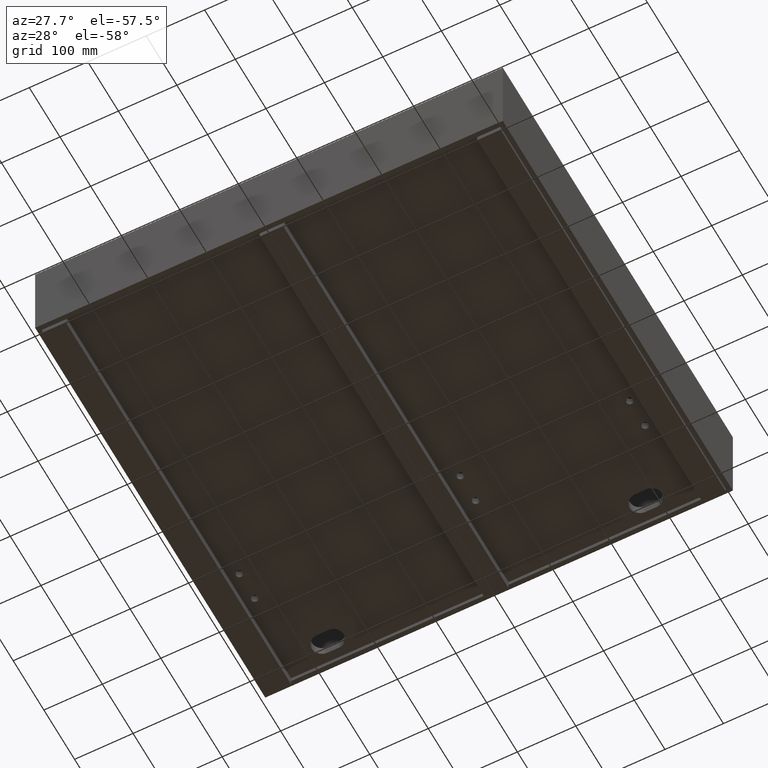
[diagram: clean part render]
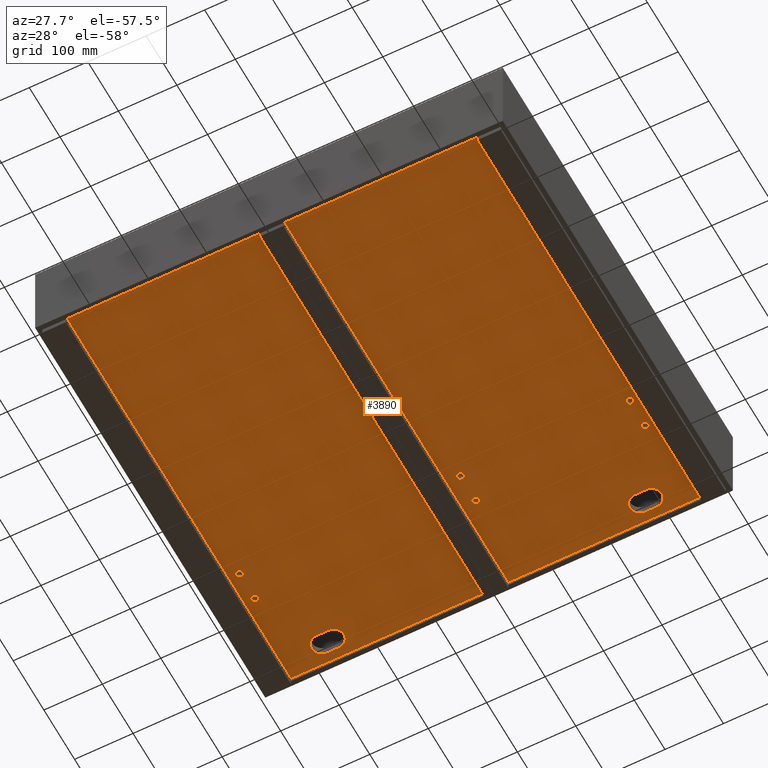
[diagram: same view with one face highlighted and labeled with its STEP entity id]
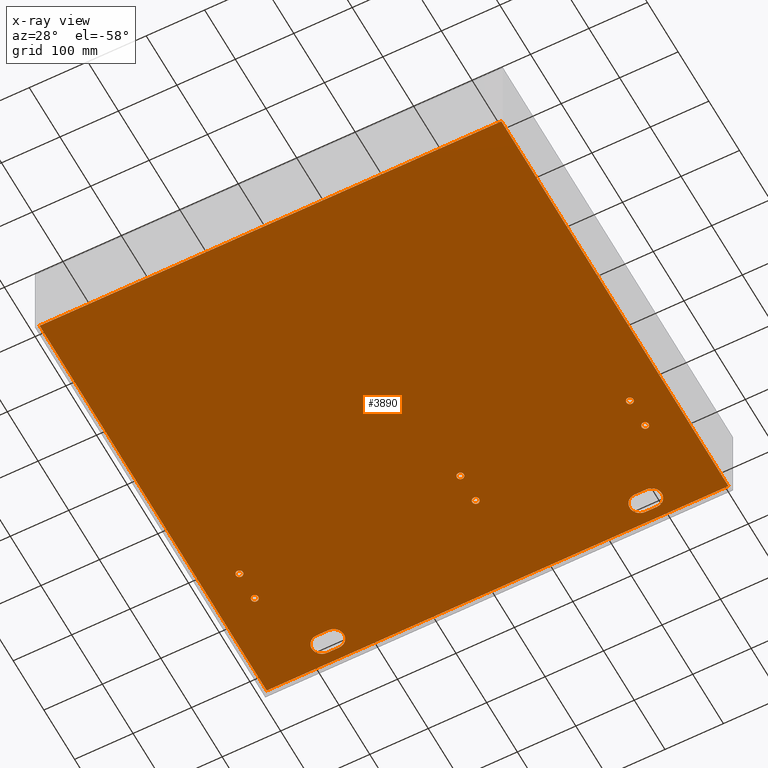
[diagram: x-ray of the same camera — body ghosted, the highlighted face saturated]
A machine part, auxiliary view. The second image highlights one B-rep face of the part: STEP entity #3890.
The next image is the same camera in x-ray: the body ghosted, the highlighted face saturated — about 0% of this face is hidden behind the body in this view.
In plain terms, the highlighted planar face has unit normal (0, -0, 1).
Its self-contained STEP definition (entity closure, byte-faithful):
#23 = EDGE_LOOP ( 'NONE', ( #7835, #491 ) ) ;
#102 = EDGE_CURVE ( 'NONE', #3132, #2811, #4945, .T. ) ;
#115 = PLANE ( 'NONE',  #1767 ) ;
#463 = DIRECTION ( 'NONE',  ( -1.000000000000000000, 0.0000000000000000000, 0.0000000000000000000 ) ) ;
#475 = CARTESIAN_POINT ( 'NONE',  ( 681.9999999999998863, 709.9999000000001388, -141.0000000000003126 ) ) ;
#481 = DIRECTION ( 'NONE',  ( -1.000000000000000000, 0.0000000000000000000, 0.0000000000000000000 ) ) ;
#491 = ORIENTED_EDGE ( 'NONE', *, *, #10372, .F. ) ;
#498 = VECTOR ( 'NONE', #10627, 1000.000000000000000 ) ;
#501 = DIRECTION ( 'NONE',  ( 1.000000000000000000, 0.0000000000000000000, 0.0000000000000000000 ) ) ;
#513 = CARTESIAN_POINT ( 'NONE',  ( 118.0000000000002132, 692.4999000000001388, -141.0000000000002558 ) ) ;
#517 = EDGE_CURVE ( 'NONE', #3669, #3132, #4400, .T. ) ;
#590 = CARTESIAN_POINT ( 'NONE',  ( 727.9999999999998863, 589.9999000000000251, -141.0000000000002274 ) ) ;
#648 = CARTESIAN_POINT ( 'NONE',  ( 66.00000000000005684, 539.9999000000000251, -141.0000000000002274 ) ) ;
#721 = DIRECTION ( 'NONE',  ( 1.000000000000000000, 0.0000000000000000000, 0.0000000000000000000 ) ) ;
#731 = EDGE_CURVE ( 'NONE', #1157, #2423, #4957, .T. ) ;
#782 = DIRECTION ( 'NONE',  ( -1.000000000000000000, 0.0000000000000000000, 0.0000000000000000000 ) ) ;
#883 = DIRECTION ( 'NONE',  ( -1.000000000000000000, -0.0000000000000000000, 1.054009200593503238E-16 ) ) ;
#893 = VECTOR ( 'NONE', #883, 1000.000000000000000 ) ;
#953 = FACE_BOUND ( 'NONE', #1112, .T. ) ;
#1010 = EDGE_CURVE ( 'NONE', #3452, #4404, #7487, .T. ) ;
#1032 = DIRECTION ( 'NONE',  ( -1.000000000000000000, 0.0000000000000000000, 0.0000000000000000000 ) ) ;
#1062 = EDGE_LOOP ( 'NONE', ( #10135, #4587 ) ) ;
#1112 = EDGE_LOOP ( 'NONE', ( #2564, #1601 ) ) ;
#1145 = AXIS2_PLACEMENT_3D ( 'NONE', #9262, #1542, #4972 ) ;
#1157 = VERTEX_POINT ( 'NONE', #3477 ) ;
#1316 = EDGE_LOOP ( 'NONE', ( #9093, #5187 ) ) ;
#1412 = DIRECTION ( 'NONE',  ( -1.054009200593503238E-16, 0.0000000000000000000, -1.000000000000000000 ) ) ;
#1419 = DIRECTION ( 'NONE',  ( 1.000000000000000000, -0.0000000000000000000, -0.0000000000000000000 ) ) ;
#1542 = DIRECTION ( 'NONE',  ( 0.0000000000000000000, 0.0000000000000000000, -1.000000000000000000 ) ) ;
#1546 = ORIENTED_EDGE ( 'NONE', *, *, #102, .F. ) ;
#1601 = ORIENTED_EDGE ( 'NONE', *, *, #5443, .F. ) ;
#1755 = EDGE_CURVE ( 'NONE', #3044, #3244, #3739, .T. ) ;
#1760 = CARTESIAN_POINT ( 'NONE',  ( 740.0000000000001137, 589.9999000000000251, -141.0000000000002274 ) ) ;
#1767 = AXIS2_PLACEMENT_3D ( 'NONE', #3548, #6984, #10432 ) ;
#1796 = FACE_BOUND ( 'NONE', #6257, .T. ) ;
#1836 = CARTESIAN_POINT ( 'NONE',  ( 100.5000000000002558, 709.9999000000000251, -141.0000000000002558 ) ) ;
#1839 = CARTESIAN_POINT ( 'NONE',  ( 681.9999999999998863, 692.4999000000001388, -141.0000000000003126 ) ) ;
#1924 = CARTESIAN_POINT ( 'NONE',  ( 72.00000000000005684, 589.9999000000000251, -141.0000000000002274 ) ) ;
#1957 = CIRCLE ( 'NONE', #8278, 17.49999999999996092 ) ;
#2115 = CARTESIAN_POINT ( 'NONE',  ( 727.9999999999998863, 539.9999000000000251, -141.0000000000002274 ) ) ;
#2171 = VERTEX_POINT ( 'NONE', #7994 ) ;
#2423 = VERTEX_POINT ( 'NONE', #5044 ) ;
#2426 = EDGE_LOOP ( 'NONE', ( #2829, #3995 ) ) ;
#2463 = DIRECTION ( 'NONE',  ( 1.000000000000000000, 0.0000000000000000000, 0.0000000000000000000 ) ) ;
#2473 = ORIENTED_EDGE ( 'NONE', *, *, #10181, .T. ) ;
#2564 = ORIENTED_EDGE ( 'NONE', *, *, #3559, .F. ) ;
#2654 = FACE_BOUND ( 'NONE', #9300, .T. ) ;
#2678 = CARTESIAN_POINT ( 'NONE',  ( 681.9999999999998863, 692.4999000000001388, -141.0000000000003126 ) ) ;
#2698 = DIRECTION ( 'NONE',  ( -1.054009200593503238E-16, 0.0000000000000000000, -1.000000000000000000 ) ) ;
#2710 = DIRECTION ( 'NONE',  ( -1.000000000000000000, -0.0000000000000000000, -0.0000000000000000000 ) ) ;
#2811 = VERTEX_POINT ( 'NONE', #6731 ) ;
#2829 = ORIENTED_EDGE ( 'NONE', *, *, #10102, .F. ) ;
#2885 = DIRECTION ( 'NONE',  ( 0.0000000000000000000, 0.0000000000000000000, -1.000000000000000000 ) ) ;
#2895 = VERTEX_POINT ( 'NONE', #1760 ) ;
#3044 = VERTEX_POINT ( 'NONE', #10615 ) ;
#3055 = CIRCLE ( 'NONE', #9352, 17.49999999999996092 ) ;
#3097 = CIRCLE ( 'NONE', #9389, 6.000000000000005329 ) ;
#3132 = VERTEX_POINT ( 'NONE', #1836 ) ;
#3147 = CARTESIAN_POINT ( 'NONE',  ( 661.9999999999998863, 727.4999000000001388, -141.0000000000003126 ) ) ;
#3162 = CARTESIAN_POINT ( 'NONE',  ( 734.0000000000000000, 589.9999000000000251, -141.0000000000002274 ) ) ;
#3196 = DIRECTION ( 'NONE',  ( -0.0000000000000000000, -1.000000000000000000, -0.0000000000000000000 ) ) ;
#3244 = VERTEX_POINT ( 'NONE', #5495 ) ;
#3262 = AXIS2_PLACEMENT_3D ( 'NONE', #10418, #2698, #6127 ) ;
#3268 = CIRCLE ( 'NONE', #9575, 17.49999999999996092 ) ;
#3340 = VECTOR ( 'NONE', #3196, 1000.000000000000000 ) ;
#3431 = DIRECTION ( 'NONE',  ( -1.000000000000000000, 0.0000000000000000000, 0.0000000000000000000 ) ) ;
#3452 = VERTEX_POINT ( 'NONE', #11135 ) ;
#3477 = CARTESIAN_POINT ( 'NONE',  ( 661.9999999999998863, 692.4999000000001388, -141.0000000000003126 ) ) ;
#3548 = CARTESIAN_POINT ( 'NONE',  ( 5.000000000000004441, 1536.161908704543976, -141.0000000000002274 ) ) ;
#3559 = EDGE_CURVE ( 'NONE', #4522, #8385, #8429, .T. ) ;
#3566 = AXIS2_PLACEMENT_3D ( 'NONE', #10610, #2885, #6314 ) ;
#3631 = EDGE_CURVE ( 'NONE', #9721, #7408, #9323, .T. ) ;
#3656 = EDGE_CURVE ( 'NONE', #7408, #9721, #10777, .T. ) ;
#3669 = VERTEX_POINT ( 'NONE', #513 ) ;
#3739 = LINE ( 'NONE', #7180, #498 ) ;
#3871 = ORIENTED_EDGE ( 'NONE', *, *, #731, .F. ) ;
#3890 = ADVANCED_FACE ( 'NONE', ( #2654, #6082, #9524, #1796, #5234, #8675, #953, #4389, #7836 ), #115, .F. ) ;
#3893 = CARTESIAN_POINT ( 'NONE',  ( 118.0000000000002132, 709.9999000000000251, -141.0000000000002558 ) ) ;
#3894 = CARTESIAN_POINT ( 'NONE',  ( 734.0000000000000000, 539.9999000000000251, -141.0000000000002274 ) ) ;
#3907 = DIRECTION ( 'NONE',  ( -1.423362852083534639E-16, 0.0000000000000000000, -1.000000000000000000 ) ) ;
#3956 = CARTESIAN_POINT ( 'NONE',  ( 118.0000000000002132, 709.9999000000000251, -141.0000000000002558 ) ) ;
#3978 = CARTESIAN_POINT ( 'NONE',  ( 60.00000000000004974, 539.9999000000000251, -141.0000000000002274 ) ) ;
#3994 = LINE ( 'NONE', #7437, #9632 ) ;
#3995 = ORIENTED_EDGE ( 'NONE', *, *, #8451, .F. ) ;
#4009 = ORIENTED_EDGE ( 'NONE', *, *, #4632, .F. ) ;
#4041 = VECTOR ( 'NONE', #2710, 1000.000000000000000 ) ;
#4083 = DIRECTION ( 'NONE',  ( 0.0000000000000000000, 0.0000000000000000000, -1.000000000000000000 ) ) ;
#4207 = CIRCLE ( 'NONE', #10516, 6.000000000000116351 ) ;
#4215 = EDGE_CURVE ( 'NONE', #9264, #10052, #4832, .T. ) ;
#4243 = LINE ( 'NONE', #7689, #8359 ) ;
#4343 = AXIS2_PLACEMENT_3D ( 'NONE', #5059, #8507, #782 ) ;
#4389 = FACE_BOUND ( 'NONE', #2426, .T. ) ;
#4400 = CIRCLE ( 'NONE', #9257, 17.49999999999996092 ) ;
#4404 = VERTEX_POINT ( 'NONE', #7131 ) ;
#4461 = AXIS2_PLACEMENT_3D ( 'NONE', #4738, #8186, #463 ) ;
#4522 = VERTEX_POINT ( 'NONE', #3978 ) ;
#4587 = ORIENTED_EDGE ( 'NONE', *, *, #6702, .F. ) ;
#4632 = EDGE_CURVE ( 'NONE', #5595, #10264, #1957, .T. ) ;
#4738 = CARTESIAN_POINT ( 'NONE',  ( 734.0000000000000000, 539.9999000000000251, -141.0000000000002274 ) ) ;
#4752 = AXIS2_PLACEMENT_3D ( 'NONE', #3162, #6598, #10041 ) ;
#4754 = ORIENTED_EDGE ( 'NONE', *, *, #4941, .F. ) ;
#4759 = CARTESIAN_POINT ( 'NONE',  ( 734.0000000000000000, 589.9999000000000251, -141.0000000000002274 ) ) ;
#4784 = CARTESIAN_POINT ( 'NONE',  ( 444.0000000000000568, 539.9999000000000251, -141.0000000000002842 ) ) ;
#4785 = ORIENTED_EDGE ( 'NONE', *, *, #10572, .F. ) ;
#4832 = CIRCLE ( 'NONE', #11147, 6.000000000000005329 ) ;
#4846 = DIRECTION ( 'NONE',  ( 1.000000000000000000, 0.0000000000000000000, 0.0000000000000000000 ) ) ;
#4919 = ORIENTED_EDGE ( 'NONE', *, *, #6048, .F. ) ;
#4941 = EDGE_CURVE ( 'NONE', #5623, #5589, #3055, .T. ) ;
#4945 = CIRCLE ( 'NONE', #9816, 17.49999999999996092 ) ;
#4957 = CIRCLE ( 'NONE', #9832, 17.49999999999996092 ) ;
#4972 = DIRECTION ( 'NONE',  ( -1.000000000000000000, 0.0000000000000000000, 0.0000000000000000000 ) ) ;
#4995 = CARTESIAN_POINT ( 'NONE',  ( 444.0000000000000568, 589.9999000000000251, -141.0000000000002842 ) ) ;
#5044 = CARTESIAN_POINT ( 'NONE',  ( 644.5000000000000000, 709.9999000000001388, -141.0000000000003126 ) ) ;
#5059 = CARTESIAN_POINT ( 'NONE',  ( 66.00000000000005684, 589.9999000000000251, -141.0000000000002274 ) ) ;
#5127 = EDGE_CURVE ( 'NONE', #3244, #4404, #5156, .T. ) ;
#5156 = LINE ( 'NONE', #8604, #893 ) ;
#5187 = ORIENTED_EDGE ( 'NONE', *, *, #3631, .F. ) ;
#5234 = FACE_BOUND ( 'NONE', #1316, .T. ) ;
#5279 = DIRECTION ( 'NONE',  ( -1.000000000000000000, 0.0000000000000000000, 0.0000000000000000000 ) ) ;
#5296 = AXIS2_PLACEMENT_3D ( 'NONE', #4784, #8231, #501 ) ;
#5314 = CARTESIAN_POINT ( 'NONE',  ( 661.9999999999998863, 709.9999000000001388, -141.0000000000003126 ) ) ;
#5391 = AXIS2_PLACEMENT_3D ( 'NONE', #648, #4083, #7523 ) ;
#5443 = EDGE_CURVE ( 'NONE', #8385, #4522, #10265, .T. ) ;
#5495 = CARTESIAN_POINT ( 'NONE',  ( 795.0000000000000000, 5.000000000000004441, -141.0000000000003126 ) ) ;
#5502 = ORIENTED_EDGE ( 'NONE', *, *, #6039, .F. ) ;
#5562 = ORIENTED_EDGE ( 'NONE', *, *, #5127, .T. ) ;
#5589 = VERTEX_POINT ( 'NONE', #2678 ) ;
#5595 = VERTEX_POINT ( 'NONE', #9551 ) ;
#5623 = VERTEX_POINT ( 'NONE', #9610 ) ;
#5659 = VERTEX_POINT ( 'NONE', #1924 ) ;
#5697 = LINE ( 'NONE', #9135, #8680 ) ;
#5798 = CARTESIAN_POINT ( 'NONE',  ( 72.00000000000005684, 539.9999000000000251, -141.0000000000002274 ) ) ;
#5828 = ORIENTED_EDGE ( 'NONE', *, *, #10768, .F. ) ;
#5913 = AXIS2_PLACEMENT_3D ( 'NONE', #3894, #7332, #10779 ) ;
#5988 = ORIENTED_EDGE ( 'NONE', *, *, #9003, .F. ) ;
#6011 = CIRCLE ( 'NONE', #1145, 6.000000000000012434 ) ;
#6039 = EDGE_CURVE ( 'NONE', #2171, #9932, #8127, .T. ) ;
#6048 = EDGE_CURVE ( 'NONE', #5589, #1157, #9570, .T. ) ;
#6082 = FACE_BOUND ( 'NONE', #6476, .T. ) ;
#6127 = DIRECTION ( 'NONE',  ( 1.000000000000000000, 0.0000000000000000000, 0.0000000000000000000 ) ) ;
#6257 = EDGE_LOOP ( 'NONE', ( #5502, #5828 ) ) ;
#6314 = DIRECTION ( 'NONE',  ( -1.000000000000000000, 0.0000000000000000000, 0.0000000000000000000 ) ) ;
#6476 = EDGE_LOOP ( 'NONE', ( #8535, #1546, #8481, #4785, #4009 ) ) ;
#6527 = EDGE_CURVE ( 'NONE', #2423, #9614, #3268, .T. ) ;
#6598 = DIRECTION ( 'NONE',  ( 0.0000000000000000000, 0.0000000000000000000, -1.000000000000000000 ) ) ;
#6702 = EDGE_CURVE ( 'NONE', #10052, #9264, #3097, .T. ) ;
#6731 = CARTESIAN_POINT ( 'NONE',  ( 118.0000000000002132, 727.4999000000001388, -141.0000000000002274 ) ) ;
#6740 = CARTESIAN_POINT ( 'NONE',  ( 138.0000000000002274, 709.9999000000000251, -141.0000000000002558 ) ) ;
#6984 = DIRECTION ( 'NONE',  ( 1.054009200593503238E-16, -0.0000000000000000000, 1.000000000000000000 ) ) ;
#6986 = LINE ( 'NONE', #10433, #4041 ) ;
#7131 = CARTESIAN_POINT ( 'NONE',  ( 5.000000000000004441, 5.000000000000004441, -141.0000000000002274 ) ) ;
#7180 = CARTESIAN_POINT ( 'NONE',  ( 795.0000000000000000, 1536.161908704543976, -141.0000000000003126 ) ) ;
#7258 = EDGE_LOOP ( 'NONE', ( #7504, #2473, #8087, #5562 ) ) ;
#7331 = DIRECTION ( 'NONE',  ( -1.423362852083534639E-16, 0.0000000000000000000, -1.000000000000000000 ) ) ;
#7332 = DIRECTION ( 'NONE',  ( 0.0000000000000000000, 0.0000000000000000000, -1.000000000000000000 ) ) ;
#7346 = DIRECTION ( 'NONE',  ( -1.000000000000000000, 0.0000000000000000000, 0.0000000000000000000 ) ) ;
#7395 = DIRECTION ( 'NONE',  ( -1.423362852083534639E-16, 0.0000000000000000000, -1.000000000000000000 ) ) ;
#7408 = VERTEX_POINT ( 'NONE', #2115 ) ;
#7437 = CARTESIAN_POINT ( 'NONE',  ( 118.0000000000002132, 727.4999000000001388, -141.0000000000002558 ) ) ;
#7468 = CARTESIAN_POINT ( 'NONE',  ( 438.0000000000000568, 589.9999000000000251, -141.0000000000002842 ) ) ;
#7487 = LINE ( 'NONE', #10928, #3340 ) ;
#7504 = ORIENTED_EDGE ( 'NONE', *, *, #1010, .F. ) ;
#7523 = DIRECTION ( 'NONE',  ( -1.000000000000000000, 0.0000000000000000000, 0.0000000000000000000 ) ) ;
#7689 = CARTESIAN_POINT ( 'NONE',  ( 5.000000000000004441, 744.9999000000000251, -141.0000000000002274 ) ) ;
#7720 = CARTESIAN_POINT ( 'NONE',  ( 661.9999999999998863, 709.9999000000001388, -141.0000000000003126 ) ) ;
#7778 = ORIENTED_EDGE ( 'NONE', *, *, #6527, .F. ) ;
#7835 = ORIENTED_EDGE ( 'NONE', *, *, #9999, .F. ) ;
#7836 = FACE_OUTER_BOUND ( 'NONE', #7258, .T. ) ;
#7856 = CARTESIAN_POINT ( 'NONE',  ( 138.0000000000002274, 692.4999000000000251, -141.0000000000002558 ) ) ;
#7994 = CARTESIAN_POINT ( 'NONE',  ( 450.0000000000000568, 539.9999000000000251, -141.0000000000002842 ) ) ;
#8036 = CARTESIAN_POINT ( 'NONE',  ( 438.0000000000000568, 539.9999000000000251, -141.0000000000002842 ) ) ;
#8087 = ORIENTED_EDGE ( 'NONE', *, *, #1755, .T. ) ;
#8127 = CIRCLE ( 'NONE', #3262, 6.000000000000005329 ) ;
#8186 = DIRECTION ( 'NONE',  ( 0.0000000000000000000, 0.0000000000000000000, -1.000000000000000000 ) ) ;
#8209 = DIRECTION ( 'NONE',  ( 0.0000000000000000000, 0.0000000000000000000, -1.000000000000000000 ) ) ;
#8231 = DIRECTION ( 'NONE',  ( -1.054009200593503238E-16, 0.0000000000000000000, -1.000000000000000000 ) ) ;
#8278 = AXIS2_PLACEMENT_3D ( 'NONE', #6740, #10179, #2463 ) ;
#8359 = VECTOR ( 'NONE', #11130, 1000.000000000000000 ) ;
#8385 = VERTEX_POINT ( 'NONE', #5798 ) ;
#8429 = CIRCLE ( 'NONE', #3566, 6.000000000000012434 ) ;
#8447 = DIRECTION ( 'NONE',  ( -1.054009200593503238E-16, 0.0000000000000000000, -1.000000000000000000 ) ) ;
#8451 = EDGE_CURVE ( 'NONE', #5659, #8489, #9210, .T. ) ;
#8481 = ORIENTED_EDGE ( 'NONE', *, *, #517, .F. ) ;
#8489 = VERTEX_POINT ( 'NONE', #9403 ) ;
#8507 = DIRECTION ( 'NONE',  ( 0.0000000000000000000, 0.0000000000000000000, -1.000000000000000000 ) ) ;
#8535 = ORIENTED_EDGE ( 'NONE', *, *, #10795, .F. ) ;
#8604 = CARTESIAN_POINT ( 'NONE',  ( 5.000000000000004441, 5.000000000000004441, -141.0000000000002274 ) ) ;
#8675 = FACE_BOUND ( 'NONE', #23, .T. ) ;
#8680 = VECTOR ( 'NONE', #1419, 1000.000000000000000 ) ;
#8756 = DIRECTION ( 'NONE',  ( -1.423362852083534639E-16, 0.0000000000000000000, -1.000000000000000000 ) ) ;
#9003 = EDGE_CURVE ( 'NONE', #9614, #5623, #5697, .T. ) ;
#9093 = ORIENTED_EDGE ( 'NONE', *, *, #3656, .F. ) ;
#9132 = CARTESIAN_POINT ( 'NONE',  ( 444.0000000000000568, 589.9999000000000251, -141.0000000000002842 ) ) ;
#9135 = CARTESIAN_POINT ( 'NONE',  ( 681.9999999999998863, 727.4999000000001388, -141.0000000000003126 ) ) ;
#9210 = CIRCLE ( 'NONE', #4343, 6.000000000000012434 ) ;
#9257 = AXIS2_PLACEMENT_3D ( 'NONE', #3893, #7331, #10776 ) ;
#9262 = CARTESIAN_POINT ( 'NONE',  ( 66.00000000000005684, 589.9999000000000251, -141.0000000000002274 ) ) ;
#9264 = VERTEX_POINT ( 'NONE', #10495 ) ;
#9300 = EDGE_LOOP ( 'NONE', ( #4919, #4754, #5988, #7778, #3871 ) ) ;
#9323 = CIRCLE ( 'NONE', #4461, 6.000000000000116351 ) ;
#9337 = CARTESIAN_POINT ( 'NONE',  ( 740.0000000000001137, 539.9999000000000251, -141.0000000000002274 ) ) ;
#9352 = AXIS2_PLACEMENT_3D ( 'NONE', #475, #3907, #7346 ) ;
#9389 = AXIS2_PLACEMENT_3D ( 'NONE', #9132, #1412, #4846 ) ;
#9403 = CARTESIAN_POINT ( 'NONE',  ( 60.00000000000004974, 589.9999000000000251, -141.0000000000002274 ) ) ;
#9524 = FACE_BOUND ( 'NONE', #1062, .T. ) ;
#9551 = CARTESIAN_POINT ( 'NONE',  ( 138.0000000000002274, 727.4999000000001388, -141.0000000000002558 ) ) ;
#9565 = VECTOR ( 'NONE', #5279, 1000.000000000000000 ) ;
#9570 = LINE ( 'NONE', #1839, #9565 ) ;
#9575 = AXIS2_PLACEMENT_3D ( 'NONE', #5314, #8756, #1032 ) ;
#9610 = CARTESIAN_POINT ( 'NONE',  ( 681.9999999999998863, 727.4999000000001388, -141.0000000000003126 ) ) ;
#9614 = VERTEX_POINT ( 'NONE', #3147 ) ;
#9622 = CIRCLE ( 'NONE', #4752, 6.000000000000116351 ) ;
#9632 = VECTOR ( 'NONE', #10881, 1000.000000000000000 ) ;
#9721 = VERTEX_POINT ( 'NONE', #9337 ) ;
#9816 = AXIS2_PLACEMENT_3D ( 'NONE', #3956, #7395, #10840 ) ;
#9832 = AXIS2_PLACEMENT_3D ( 'NONE', #7720, #11160, #3431 ) ;
#9932 = VERTEX_POINT ( 'NONE', #8036 ) ;
#9999 = EDGE_CURVE ( 'NONE', #10044, #2895, #4207, .T. ) ;
#10041 = DIRECTION ( 'NONE',  ( -1.000000000000000000, 0.0000000000000000000, 0.0000000000000000000 ) ) ;
#10044 = VERTEX_POINT ( 'NONE', #590 ) ;
#10052 = VERTEX_POINT ( 'NONE', #7468 ) ;
#10102 = EDGE_CURVE ( 'NONE', #8489, #5659, #6011, .T. ) ;
#10135 = ORIENTED_EDGE ( 'NONE', *, *, #4215, .F. ) ;
#10165 = CIRCLE ( 'NONE', #5296, 6.000000000000005329 ) ;
#10179 = DIRECTION ( 'NONE',  ( -1.423362852083534639E-16, 0.0000000000000000000, -1.000000000000000000 ) ) ;
#10181 = EDGE_CURVE ( 'NONE', #3452, #3044, #4243, .T. ) ;
#10264 = VERTEX_POINT ( 'NONE', #7856 ) ;
#10265 = CIRCLE ( 'NONE', #5391, 6.000000000000012434 ) ;
#10372 = EDGE_CURVE ( 'NONE', #2895, #10044, #9622, .T. ) ;
#10418 = CARTESIAN_POINT ( 'NONE',  ( 444.0000000000000568, 539.9999000000000251, -141.0000000000002842 ) ) ;
#10432 = DIRECTION ( 'NONE',  ( 1.000000000000000000, 0.0000000000000000000, -1.054009200593503238E-16 ) ) ;
#10433 = CARTESIAN_POINT ( 'NONE',  ( 118.0000000000002132, 692.4999000000001388, -141.0000000000002558 ) ) ;
#10495 = CARTESIAN_POINT ( 'NONE',  ( 450.0000000000000568, 589.9999000000000251, -141.0000000000002842 ) ) ;
#10516 = AXIS2_PLACEMENT_3D ( 'NONE', #4759, #8209, #481 ) ;
#10572 = EDGE_CURVE ( 'NONE', #10264, #3669, #6986, .T. ) ;
#10610 = CARTESIAN_POINT ( 'NONE',  ( 66.00000000000005684, 539.9999000000000251, -141.0000000000002274 ) ) ;
#10615 = CARTESIAN_POINT ( 'NONE',  ( 795.0000000000000000, 744.9999000000000251, -141.0000000000003126 ) ) ;
#10627 = DIRECTION ( 'NONE',  ( -0.0000000000000000000, -1.000000000000000000, -0.0000000000000000000 ) ) ;
#10768 = EDGE_CURVE ( 'NONE', #9932, #2171, #10165, .T. ) ;
#10776 = DIRECTION ( 'NONE',  ( 1.000000000000000000, 0.0000000000000000000, 0.0000000000000000000 ) ) ;
#10777 = CIRCLE ( 'NONE', #5913, 6.000000000000116351 ) ;
#10779 = DIRECTION ( 'NONE',  ( -1.000000000000000000, 0.0000000000000000000, 0.0000000000000000000 ) ) ;
#10795 = EDGE_CURVE ( 'NONE', #2811, #5595, #3994, .T. ) ;
#10840 = DIRECTION ( 'NONE',  ( 1.000000000000000000, 0.0000000000000000000, 0.0000000000000000000 ) ) ;
#10881 = DIRECTION ( 'NONE',  ( 1.000000000000000000, 0.0000000000000000000, 0.0000000000000000000 ) ) ;
#10928 = CARTESIAN_POINT ( 'NONE',  ( 5.000000000000004441, 1536.161908704543976, -141.0000000000002274 ) ) ;
#11130 = DIRECTION ( 'NONE',  ( 1.000000000000000000, 0.0000000000000000000, -1.054009200593503238E-16 ) ) ;
#11135 = CARTESIAN_POINT ( 'NONE',  ( 5.000000000000004441, 744.9999000000000251, -141.0000000000002274 ) ) ;
#11147 = AXIS2_PLACEMENT_3D ( 'NONE', #4995, #8447, #721 ) ;
#11160 = DIRECTION ( 'NONE',  ( -1.423362852083534639E-16, 0.0000000000000000000, -1.000000000000000000 ) ) ;